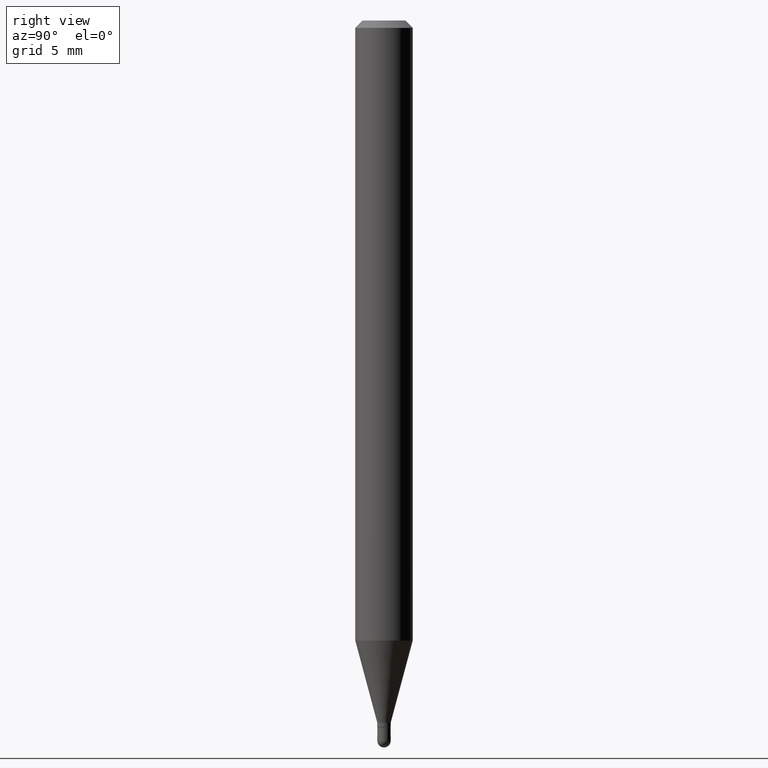
[diagram: clean part render]
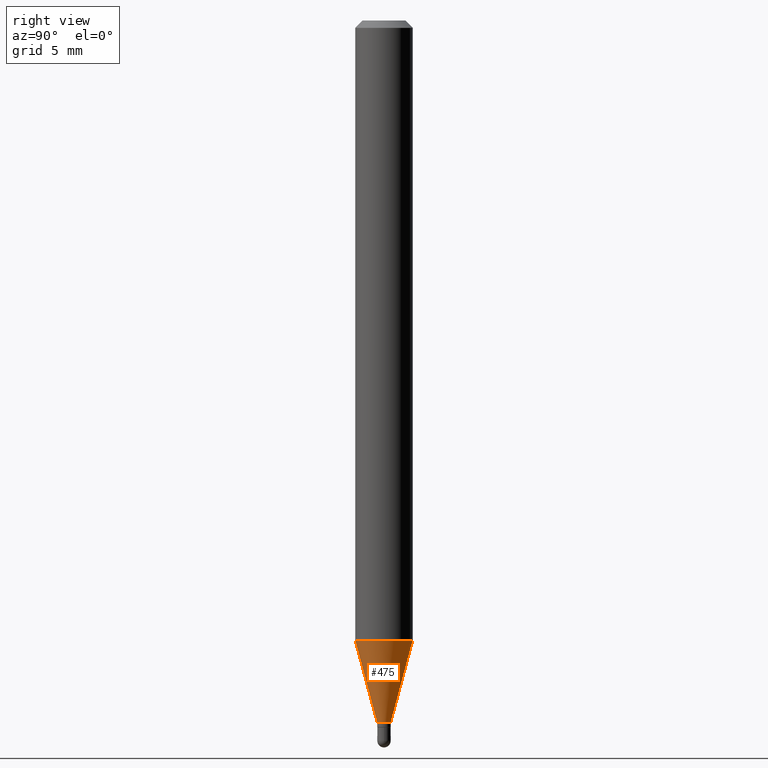
[diagram: same view with one face highlighted and labeled with its STEP entity id]
A machine part, right view. The second image highlights one B-rep face of the part: STEP entity #475.
In plain terms, the highlighted conical surface has half-angle 15 deg.
Its self-contained STEP definition (entity closure, byte-faithful):
#20 = VECTOR ( 'NONE', #279, 39.37007874015748143 ) ;
#25 = CARTESIAN_POINT ( 'NONE',  ( -9.636488495203459207E-17, -0.01380000000000496801, -1.445099999999999829 ) ) ;
#40 = AXIS2_PLACEMENT_3D ( 'NONE', #390, #225, #226 ) ;
#71 = ORIENTED_EDGE ( 'NONE', *, *, #500, .F. ) ;
#72 = LINE ( 'NONE', #25, #95 ) ;
#83 = DIRECTION ( 'NONE',  ( -6.982962677686265922E-15, -1.000000000000000000, 0.000000000000000000 ) ) ;
#91 = DIRECTION ( 'NONE',  ( -2.445422202875732962E-29, 3.491548077434707223E-15, 1.000000000000000000 ) ) ;
#95 = VECTOR ( 'NONE', #160, 39.37007874015748143 ) ;
#98 = ORIENTED_EDGE ( 'NONE', *, *, #457, .F. ) ;
#99 = ORIENTED_EDGE ( 'NONE', *, *, #233, .T. ) ;
#111 = DIRECTION ( 'NONE',  ( -2.445422202875732962E-29, 3.491548077434707223E-15, 1.000000000000000000 ) ) ;
#123 = LINE ( 'NONE', #275, #20 ) ;
#127 = AXIS2_PLACEMENT_3D ( 'NONE', #344, #91, #161 ) ;
#160 = DIRECTION ( 'NONE',  ( -1.807323732225330928E-15, -0.2588190451025182970, 0.9659258262890689783 ) ) ;
#161 = DIRECTION ( 'NONE',  ( -6.982962677686265922E-15, -1.000000000000000000, 0.000000000000000000 ) ) ;
#184 = ORIENTED_EDGE ( 'NONE', *, *, #197, .T. ) ;
#197 = EDGE_CURVE ( 'NONE', #328, #250, #278, .T. ) ;
#204 = EDGE_LOOP ( 'NONE', ( #184, #99, #71, #98 ) ) ;
#207 = CARTESIAN_POINT ( 'NONE',  ( -4.123439461173428234E-16, -0.05905000000000445309, -1.276224700957508285 ) ) ;
#225 = DIRECTION ( 'NONE',  ( -2.445422202875732962E-29, 3.491548077434707223E-15, 1.000000000000000000 ) ) ;
#226 = DIRECTION ( 'NONE',  ( -6.982962677686265922E-15, -1.000000000000000000, 4.626330217890369336E-15 ) ) ;
#233 = EDGE_CURVE ( 'NONE', #250, #388, #123, .T. ) ;
#250 = VERTEX_POINT ( 'NONE', #428 ) ;
#257 = CIRCLE ( 'NONE', #40, 0.05904999999999999832 ) ;
#275 = CARTESIAN_POINT ( 'NONE',  ( 9.805489753492859550E-17, 0.01379999999999487886, -1.445099999999999829 ) ) ;
#278 = CIRCLE ( 'NONE', #127, 0.01379999999999992344 ) ;
#279 = DIRECTION ( 'NONE',  ( 1.839019923739601104E-15, 0.2588190451025250693, 0.9659258262890670910 ) ) ;
#328 = VERTEX_POINT ( 'NONE', #438 ) ;
#334 = CARTESIAN_POINT ( 'NONE',  ( 4.195754854663701599E-16, 0.05904999999999552274, -1.276224700957508729 ) ) ;
#344 = CARTESIAN_POINT ( 'NONE',  ( 3.533879625375720671E-29, -5.045636126700895725E-15, -1.445099999999999829 ) ) ;
#364 = VERTEX_POINT ( 'NONE', #207 ) ;
#388 = VERTEX_POINT ( 'NONE', #334 ) ;
#390 = CARTESIAN_POINT ( 'NONE',  ( 3.120908219579933715E-29, -4.455999901002872408E-15, -1.276224700957508507 ) ) ;
#419 = AXIS2_PLACEMENT_3D ( 'NONE', #499, #111, #83 ) ;
#428 = CARTESIAN_POINT ( 'NONE',  ( 2.588151915006495688E-16, 0.01379999999999487886, -1.445099999999999829 ) ) ;
#430 = CONICAL_SURFACE ( 'NONE', #419, 0.01379999999999992344, 0.2617993877991502960 ) ;
#438 = CARTESIAN_POINT ( 'NONE',  ( -9.636488495203459207E-17, -0.01380000000000496801, -1.445099999999999829 ) ) ;
#457 = EDGE_CURVE ( 'NONE', #328, #364, #72, .T. ) ;
#458 = FACE_OUTER_BOUND ( 'NONE', #204, .T. ) ;
#475 = ADVANCED_FACE ( 'NONE', ( #458 ), #430, .T. ) ;
#499 = CARTESIAN_POINT ( 'NONE',  ( 3.533879625375720671E-29, -5.045636126700895725E-15, -1.445099999999999829 ) ) ;
#500 = EDGE_CURVE ( 'NONE', #364, #388, #257, .T. ) ;